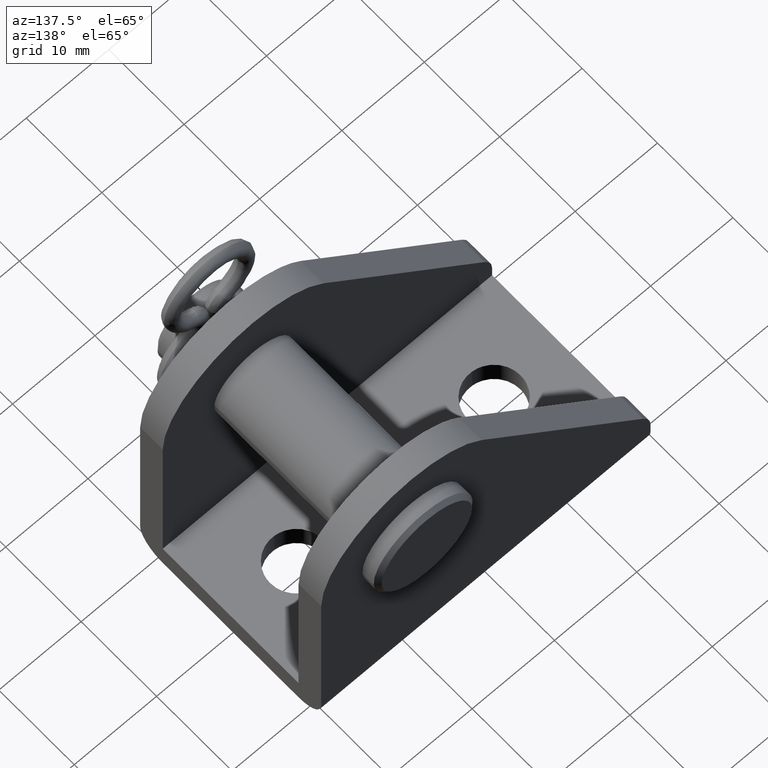
[diagram: clean part render]
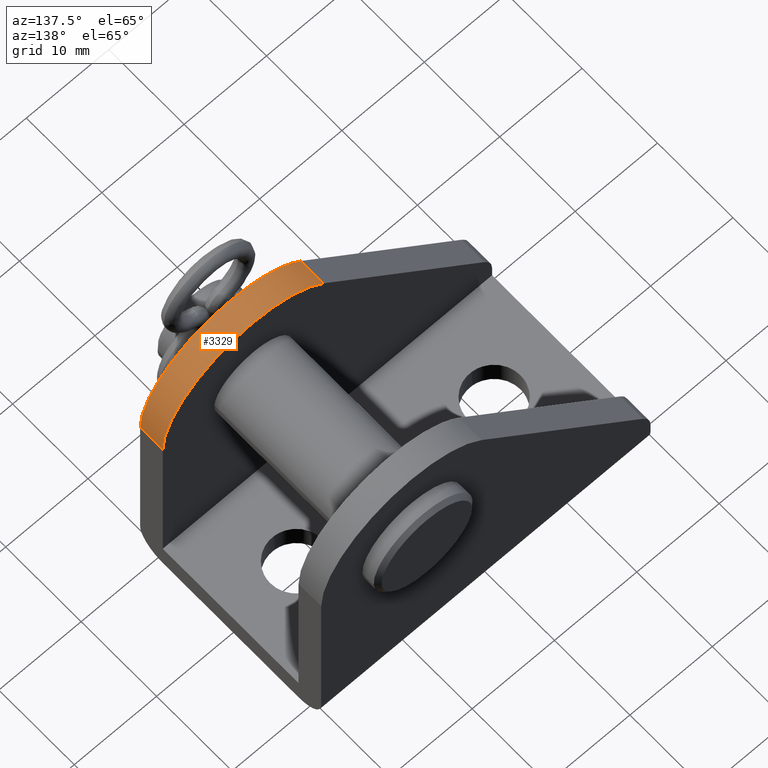
[diagram: same view with one face highlighted and labeled with its STEP entity id]
A machine part, auxiliary view. The second image highlights one B-rep face of the part: STEP entity #3329.
In plain terms, the highlighted face is a freeform B-spline surface patch.
Its self-contained STEP definition (entity closure, byte-faithful):
#2800=CARTESIAN_POINT('',(11.0,-11.999999999999121,0.0));
#2801=VERTEX_POINT('',#2800);
#2807=CARTESIAN_POINT('',(-8.503498532940530,-11.999999999999121,6.977858747515390));
#2808=VERTEX_POINT('',#2807);
#2809=CARTESIAN_POINT('',(11.0,-11.999999999999121,0.0));
#2810=CARTESIAN_POINT('',(11.000060591969660,-11.999999999999121,0.632779760251184));
#2811=CARTESIAN_POINT('',(10.911768584390380,-11.999999999999110,1.652231251340377));
#2812=CARTESIAN_POINT('',(10.573594447025091,-11.999999999999160,3.127724793566058));
#2813=CARTESIAN_POINT('',(10.174237559418181,-11.999999999999000,4.238447019394608));
#2814=CARTESIAN_POINT('',(9.642954801903773,-11.999999999999330,5.329849372121823));
#2815=CARTESIAN_POINT('',(8.997440008019392,-11.999999999998820,6.379723619423834));
#2816=CARTESIAN_POINT('',(8.168215832568123,-11.999999999999091,7.408654112808942));
#2817=CARTESIAN_POINT('',(7.069105770021836,-11.999999999999250,8.474970585569277));
#2818=CARTESIAN_POINT('',(5.986627241690758,-11.999999999998940,9.266238234464359));
#2819=CARTESIAN_POINT('',(4.768042849330237,-11.999999999999440,9.934714641473329));
#2820=CARTESIAN_POINT('',(3.567218184403913,-11.999999999997820,10.440631272550080));
#2821=CARTESIAN_POINT('',(2.274241756634236,-11.999999999999501,10.790806293201390));
#2822=CARTESIAN_POINT('',(0.828391653875825,-11.999999999999110,10.997863400980391));
#2823=CARTESIAN_POINT('',(-0.634589590371652,-11.999999999998741,11.023652283340120));
#2824=CARTESIAN_POINT('',(-2.119469478710369,-11.999999999999339,10.824354566027470));
#2825=CARTESIAN_POINT('',(-3.684244263385035,-11.999999999998950,10.407412980164221));
#2826=CARTESIAN_POINT('',(-5.175983744525588,-11.999999999999179,9.765010766570757));
#2827=CARTESIAN_POINT('',(-6.418895958010222,-11.999999999999130,8.960474430848356));
#2828=CARTESIAN_POINT('',(-7.510889070672302,-11.999999999999099,8.073274190638216));
#2829=CARTESIAN_POINT('',(-8.113284699507863,-11.999999999999149,7.453478348855251));
#2830=CARTESIAN_POINT('',(-8.503498532940530,-11.999999999999121,6.977858747515390));
#2831=B_SPLINE_CURVE_WITH_KNOTS('',3,(#2809,#2810,#2811,#2812,#2813,#2814,#2815,#2816,#2817,#2818,#2819,#2820,#2821,#2822,#2823,#2824,#2825,#2826,#2827,#2828,#2829,#2830),.UNSPECIFIED.,.F.,.U.,(4,1,1,1,1,1,1,1,1,1,1,1,1,1,1,1,1,1,1,4),(0.000000043734136,1.898325575444122,3.058430444229217,4.534936002897315,5.431377736202574,6.696941762665222,8.226166038803836,9.386266835781107,11.284625247267950,12.233796102051020,13.552055467499731,15.186759470434311,16.241399493076631,17.928816820088791,19.563504297835749,20.723606022312719,22.780149895416681,24.414850091497939,25.153080772972949,26.998692325625381),.UNSPECIFIED.);
#2832=EDGE_CURVE('',#2801,#2808,#2831,.T.);
#3258=CARTESIAN_POINT('',(-8.503498532940530,-8.999999999999119,6.977858747515390));
#3259=VERTEX_POINT('',#3258);
#3267=CARTESIAN_POINT('',(-8.503498532940530,-8.999999999999119,6.977858747515390));
#3268=CARTESIAN_POINT('',(-8.503498532940530,-11.999999999999121,6.977858747515390));
#3269=QUASI_UNIFORM_CURVE('',1,(#3267,#3268),.UNSPECIFIED.,.F.,.U.);
#3270=EDGE_CURVE('',#3259,#2808,#3269,.T.);
#3275=CARTESIAN_POINT('',(-8.726886743203561,-8.924999999999118,6.696375719095917));
#3276=CARTESIAN_POINT('',(-8.726886743203561,-12.076874999999120,6.696375719095917));
#3277=CARTESIAN_POINT('',(-3.726465822967697,-8.924999999999118,13.213051137233281));
#3278=CARTESIAN_POINT('',(-3.726465822967697,-12.076874999999120,13.213051137233281));
#3279=CARTESIAN_POINT('',(3.942047444998329,-8.924999999999118,10.269384691469220));
#3280=CARTESIAN_POINT('',(3.942047444998329,-12.076874999999120,10.269384691469220));
#3281=CARTESIAN_POINT('',(11.610560712964350,-8.924999999999118,7.325718245705158));
#3282=CARTESIAN_POINT('',(11.610560712964350,-12.076874999999120,7.325718245705158));
#3283=CARTESIAN_POINT('',(10.966090671064430,-8.924999999999118,-0.863050053006297));
#3284=CARTESIAN_POINT('',(10.966090671064430,-12.076874999999120,-0.863050053006297));
#3292=(BOUNDED_SURFACE()B_SPLINE_SURFACE(1,2,((#3275,#3277,#3279,#3281,#3283),(#3276,#3278,#3280,#3282,#3284)),.UNSPECIFIED.,.F.,.F.,.U.)B_SPLINE_SURFACE_WITH_KNOTS((2,2),(3,2,3),(0.0,3.151875000000003),(0.0,14.615531825455360,29.231063650910720),.UNSPECIFIED.)GEOMETRIC_REPRESENTATION_ITEM()RATIONAL_B_SPLINE_SURFACE(((1.0,0.801253812691061,1.0,0.801253812691061,1.0),(1.0,0.801253812691061,1.0,0.801253812691061,1.0)))REPRESENTATION_ITEM('')SURFACE());
#3293=ORIENTED_EDGE('',*,*,#2832,.F.);
#3294=CARTESIAN_POINT('',(11.0,-8.999999999999119,0.0));
#3295=VERTEX_POINT('',#3294);
#3296=CARTESIAN_POINT('',(11.0,-8.999999999999119,0.0));
#3297=CARTESIAN_POINT('',(11.0,-11.999999999999121,0.0));
#3298=QUASI_UNIFORM_CURVE('',1,(#3296,#3297),.UNSPECIFIED.,.F.,.U.);
#3299=EDGE_CURVE('',#3295,#2801,#3298,.T.);
#3300=ORIENTED_EDGE('',*,*,#3299,.F.);
#3301=CARTESIAN_POINT('',(11.0,-8.999999999999119,0.0));
#3302=CARTESIAN_POINT('',(11.000035117155541,-8.999999999999126,0.562471365410988));
#3303=CARTESIAN_POINT('',(10.921628286378279,-8.999999999999121,1.581937275857362));
#3304=CARTESIAN_POINT('',(10.597442556207550,-8.999999999999137,3.061418029576499));
#3305=CARTESIAN_POINT('',(10.174235675500251,-8.999999999999051,4.238446879652065));
#3306=CARTESIAN_POINT('',(9.642955410388538,-8.999999999999234,5.329849676770566));
#3307=CARTESIAN_POINT('',(8.997438172352531,-8.999999999998995,6.379721893131048));
#3308=CARTESIAN_POINT('',(8.112944622223482,-8.999999999999020,7.477261240481757));
#3309=CARTESIAN_POINT('',(7.064269185587037,-8.999999999999288,8.470469883458884));
#3310=CARTESIAN_POINT('',(5.898396812487633,-8.999999999998860,9.322698501133242));
#3311=CARTESIAN_POINT('',(4.753769540842279,-8.999999999999520,9.947086614796387));
#3312=CARTESIAN_POINT('',(3.465131371799110,-8.999999999998114,10.468264156951760));
#3313=CARTESIAN_POINT('',(2.019055490046922,-8.999999999999677,10.859949983070191));
#3314=CARTESIAN_POINT('',(0.265077077210719,-8.999999999998821,11.047105821699001));
#3315=CARTESIAN_POINT('',(-1.460205609919300,-8.999999999999419,10.945002072630709));
#3316=CARTESIAN_POINT('',(-2.976649092605558,-8.999999999998945,10.621602047550450));
#3317=CARTESIAN_POINT('',(-4.221911403147145,-8.999999999999252,10.181744926579309));
#3318=CARTESIAN_POINT('',(-5.442308445029277,-8.999999999999067,9.592570032903700));
#3319=CARTESIAN_POINT('',(-6.537274788506016,-8.999999999999135,8.883863852296646));
#3320=CARTESIAN_POINT('',(-7.612936330534201,-8.999999999999115,7.975124794790516));
#3321=CARTESIAN_POINT('',(-8.202457692837413,-8.999999999999121,7.344745282923901));
#3322=CARTESIAN_POINT('',(-8.503498532940530,-8.999999999999119,6.977858747515390));
#3323=B_SPLINE_CURVE_WITH_KNOTS('',3,(#3301,#3302,#3303,#3304,#3305,#3306,#3307,#3308,#3309,#3310,#3311,#3312,#3313,#3314,#3315,#3316,#3317,#3318,#3319,#3320,#3321,#3322),.UNSPECIFIED.,.F.,.U.,(4,1,1,1,1,1,1,1,1,1,1,1,1,1,1,1,1,1,1,4),(0.000000043734136,1.687411067836788,3.058430444229217,4.534936002897315,5.431377736202574,6.696941762665222,8.226166038803836,9.649924940010855,11.020966540480311,12.550195259102320,13.552055467499731,15.186759470434311,17.032375041707279,18.825258930662329,20.354483235744780,21.672784689389282,22.780149895416681,24.414850091497939,25.574936541147039,26.998692325625381),.UNSPECIFIED.);
#3324=EDGE_CURVE('',#3295,#3259,#3323,.T.);
#3325=ORIENTED_EDGE('',*,*,#3324,.T.);
#3326=ORIENTED_EDGE('',*,*,#3270,.T.);
#3327=EDGE_LOOP('',(#3293,#3300,#3325,#3326));
#3328=FACE_OUTER_BOUND('',#3327,.T.);
#3329=ADVANCED_FACE('',(#3328),#3292,.T.);